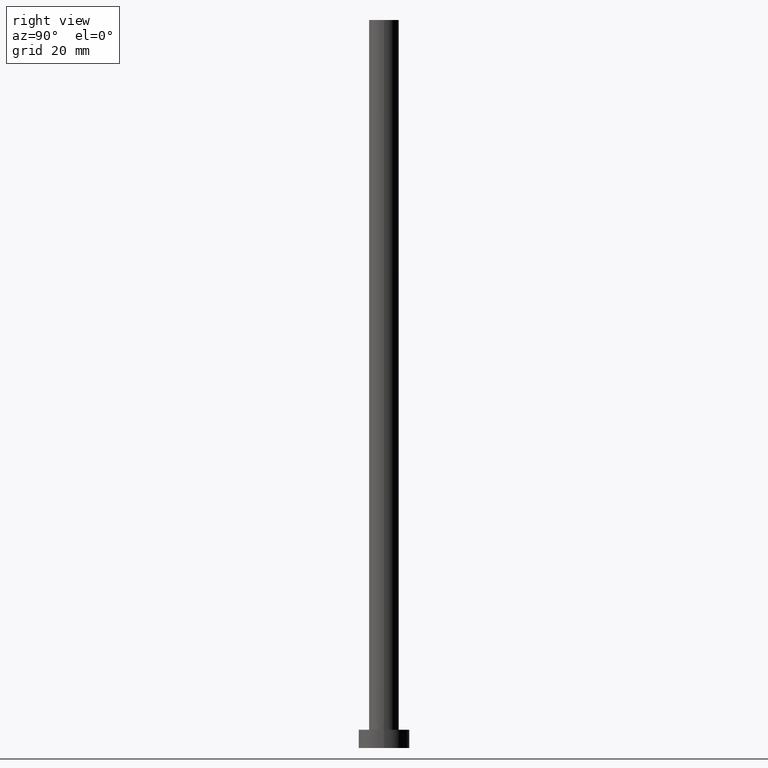
[diagram: clean part render]
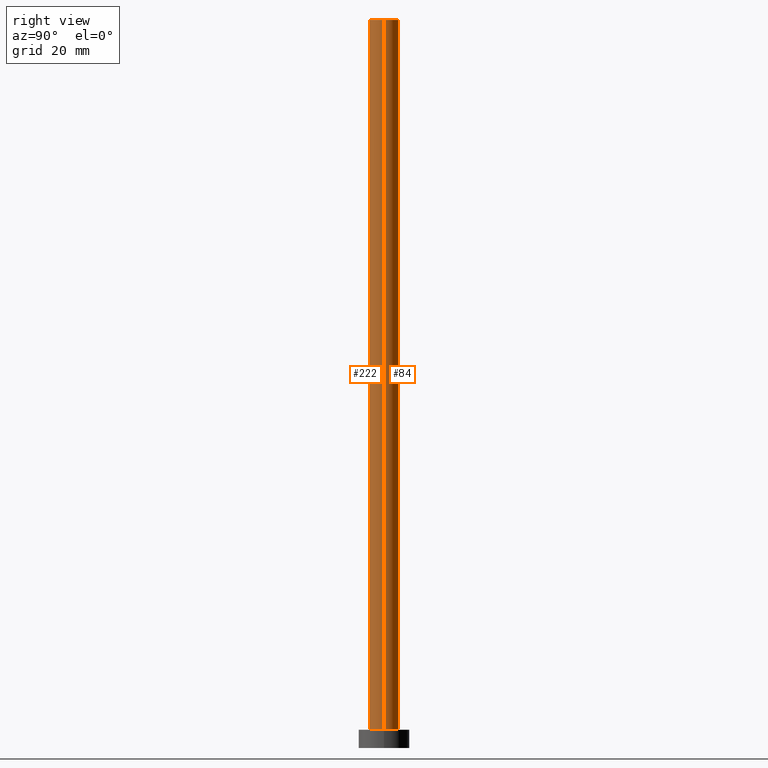
[diagram: same view with one multi-face feature highlighted, each face labeled with its STEP entity id]
A machine part, right view. The highlighted faces form ONE feature: a constant-radius fillet chain: 2 tangent blend faces with common blend radius 4.1 mm. The faces share edges in the B-rep.
Their STEP definitions:
[1] entity #222 (Cylinder):
#3 = DIRECTION ( 'NONE',  ( 0.000000000000000000, 0.000000000000000000, 1.000000000000000000 ) ) ;
#7 = DIRECTION ( 'NONE',  ( -0.000000000000000000, -0.000000000000000000, -1.000000000000000000 ) ) ;
#17 = CYLINDRICAL_SURFACE ( 'NONE', #172, 4.099999999999999645 ) ;
#32 = VERTEX_POINT ( 'NONE', #54 ) ;
#52 = ORIENTED_EDGE ( 'NONE', *, *, #150, .F. ) ;
#54 = CARTESIAN_POINT ( 'NONE',  ( 4.099999999999999645, 5.021051876504147385E-16, 5.000000000000000000 ) ) ;
#60 = CARTESIAN_POINT ( 'NONE',  ( 0.000000000000000000, 0.000000000000000000, 5.000000000000000000 ) ) ;
#75 = DIRECTION ( 'NONE',  ( -1.000000000000000000, 0.000000000000000000, 0.000000000000000000 ) ) ;
#76 = LINE ( 'NONE', #159, #104 ) ;
#77 = VERTEX_POINT ( 'NONE', #183 ) ;
#90 = LINE ( 'NONE', #199, #237 ) ;
#95 = DIRECTION ( 'NONE',  ( 1.000000000000000000, 0.000000000000000000, 0.000000000000000000 ) ) ;
#97 = CARTESIAN_POINT ( 'NONE',  ( -4.099999999999999645, 0.000000000000000000, 200.0000000000000000 ) ) ;
#103 = CIRCLE ( 'NONE', #164, 4.099999999999999645 ) ;
#104 = VECTOR ( 'NONE', #239, 1000.000000000000000 ) ;
#106 = CIRCLE ( 'NONE', #148, 4.099999999999999645 ) ;
#110 = FACE_OUTER_BOUND ( 'NONE', #117, .T. ) ;
#117 = EDGE_LOOP ( 'NONE', ( #168, #52, #226, #254 ) ) ;
#121 = CARTESIAN_POINT ( 'NONE',  ( -4.099999999999999645, 0.000000000000000000, 5.000000000000000000 ) ) ;
#136 = EDGE_CURVE ( 'NONE', #193, #32, #103, .T. ) ;
#140 = DIRECTION ( 'NONE',  ( 0.000000000000000000, 0.000000000000000000, 1.000000000000000000 ) ) ;
#148 = AXIS2_PLACEMENT_3D ( 'NONE', #176, #3, #95 ) ;
#150 = EDGE_CURVE ( 'NONE', #250, #77, #106, .T. ) ;
#154 = DIRECTION ( 'NONE',  ( -0.000000000000000000, -0.000000000000000000, -1.000000000000000000 ) ) ;
#159 = CARTESIAN_POINT ( 'NONE',  ( -4.099999999999999645, 0.000000000000000000, 200.0000000000000000 ) ) ;
#164 = AXIS2_PLACEMENT_3D ( 'NONE', #60, #140, #214 ) ;
#168 = ORIENTED_EDGE ( 'NONE', *, *, #238, .F. ) ;
#172 = AXIS2_PLACEMENT_3D ( 'NONE', #197, #154, #75 ) ;
#174 = EDGE_CURVE ( 'NONE', #250, #193, #76, .T. ) ;
#176 = CARTESIAN_POINT ( 'NONE',  ( 0.000000000000000000, 0.000000000000000000, 200.0000000000000000 ) ) ;
#183 = CARTESIAN_POINT ( 'NONE',  ( 4.099999999999999645, 5.021051876504147385E-16, 200.0000000000000000 ) ) ;
#193 = VERTEX_POINT ( 'NONE', #121 ) ;
#197 = CARTESIAN_POINT ( 'NONE',  ( 0.000000000000000000, 0.000000000000000000, 200.0000000000000000 ) ) ;
#199 = CARTESIAN_POINT ( 'NONE',  ( 4.099999999999999645, 5.021051876504147385E-16, 200.0000000000000000 ) ) ;
#214 = DIRECTION ( 'NONE',  ( 1.000000000000000000, 0.000000000000000000, 0.000000000000000000 ) ) ;
#222 = ADVANCED_FACE ( 'NONE', ( #110 ), #17, .T. ) ;
#226 = ORIENTED_EDGE ( 'NONE', *, *, #174, .T. ) ;
#237 = VECTOR ( 'NONE', #7, 1000.000000000000000 ) ;
#238 = EDGE_CURVE ( 'NONE', #77, #32, #90, .T. ) ;
#239 = DIRECTION ( 'NONE',  ( -0.000000000000000000, -0.000000000000000000, -1.000000000000000000 ) ) ;
#250 = VERTEX_POINT ( 'NONE', #97 ) ;
#254 = ORIENTED_EDGE ( 'NONE', *, *, #136, .T. ) ;
[2] entity #84 (Cylinder):
#1 = ORIENTED_EDGE ( 'NONE', *, *, #16, .F. ) ;
#5 = DIRECTION ( 'NONE',  ( -1.000000000000000000, 0.000000000000000000, 0.000000000000000000 ) ) ;
#7 = DIRECTION ( 'NONE',  ( -0.000000000000000000, -0.000000000000000000, -1.000000000000000000 ) ) ;
#10 = CIRCLE ( 'NONE', #29, 4.099999999999999645 ) ;
#14 = EDGE_CURVE ( 'NONE', #32, #193, #102, .T. ) ;
#16 = EDGE_CURVE ( 'NONE', #77, #250, #10, .T. ) ;
#29 = AXIS2_PLACEMENT_3D ( 'NONE', #232, #240, #116 ) ;
#32 = VERTEX_POINT ( 'NONE', #54 ) ;
#44 = EDGE_LOOP ( 'NONE', ( #1, #251, #80, #127 ) ) ;
#54 = CARTESIAN_POINT ( 'NONE',  ( 4.099999999999999645, 5.021051876504147385E-16, 5.000000000000000000 ) ) ;
#76 = LINE ( 'NONE', #159, #104 ) ;
#77 = VERTEX_POINT ( 'NONE', #183 ) ;
#80 = ORIENTED_EDGE ( 'NONE', *, *, #14, .T. ) ;
#84 = ADVANCED_FACE ( 'NONE', ( #235 ), #94, .T. ) ;
#90 = LINE ( 'NONE', #199, #237 ) ;
#94 = CYLINDRICAL_SURFACE ( 'NONE', #187, 4.099999999999999645 ) ;
#97 = CARTESIAN_POINT ( 'NONE',  ( -4.099999999999999645, 0.000000000000000000, 200.0000000000000000 ) ) ;
#99 = CARTESIAN_POINT ( 'NONE',  ( 0.000000000000000000, 0.000000000000000000, 5.000000000000000000 ) ) ;
#102 = CIRCLE ( 'NONE', #133, 4.099999999999999645 ) ;
#104 = VECTOR ( 'NONE', #239, 1000.000000000000000 ) ;
#116 = DIRECTION ( 'NONE',  ( 1.000000000000000000, 0.000000000000000000, 0.000000000000000000 ) ) ;
#121 = CARTESIAN_POINT ( 'NONE',  ( -4.099999999999999645, 0.000000000000000000, 5.000000000000000000 ) ) ;
#127 = ORIENTED_EDGE ( 'NONE', *, *, #174, .F. ) ;
#133 = AXIS2_PLACEMENT_3D ( 'NONE', #99, #201, #219 ) ;
#159 = CARTESIAN_POINT ( 'NONE',  ( -4.099999999999999645, 0.000000000000000000, 200.0000000000000000 ) ) ;
#174 = EDGE_CURVE ( 'NONE', #250, #193, #76, .T. ) ;
#179 = CARTESIAN_POINT ( 'NONE',  ( 0.000000000000000000, 0.000000000000000000, 200.0000000000000000 ) ) ;
#181 = DIRECTION ( 'NONE',  ( -0.000000000000000000, -0.000000000000000000, -1.000000000000000000 ) ) ;
#183 = CARTESIAN_POINT ( 'NONE',  ( 4.099999999999999645, 5.021051876504147385E-16, 200.0000000000000000 ) ) ;
#187 = AXIS2_PLACEMENT_3D ( 'NONE', #179, #181, #5 ) ;
#193 = VERTEX_POINT ( 'NONE', #121 ) ;
#199 = CARTESIAN_POINT ( 'NONE',  ( 4.099999999999999645, 5.021051876504147385E-16, 200.0000000000000000 ) ) ;
#201 = DIRECTION ( 'NONE',  ( 0.000000000000000000, 0.000000000000000000, 1.000000000000000000 ) ) ;
#219 = DIRECTION ( 'NONE',  ( 1.000000000000000000, 0.000000000000000000, 0.000000000000000000 ) ) ;
#232 = CARTESIAN_POINT ( 'NONE',  ( 0.000000000000000000, 0.000000000000000000, 200.0000000000000000 ) ) ;
#235 = FACE_OUTER_BOUND ( 'NONE', #44, .T. ) ;
#237 = VECTOR ( 'NONE', #7, 1000.000000000000000 ) ;
#238 = EDGE_CURVE ( 'NONE', #77, #32, #90, .T. ) ;
#239 = DIRECTION ( 'NONE',  ( -0.000000000000000000, -0.000000000000000000, -1.000000000000000000 ) ) ;
#240 = DIRECTION ( 'NONE',  ( 0.000000000000000000, 0.000000000000000000, 1.000000000000000000 ) ) ;
#250 = VERTEX_POINT ( 'NONE', #97 ) ;
#251 = ORIENTED_EDGE ( 'NONE', *, *, #238, .T. ) ;